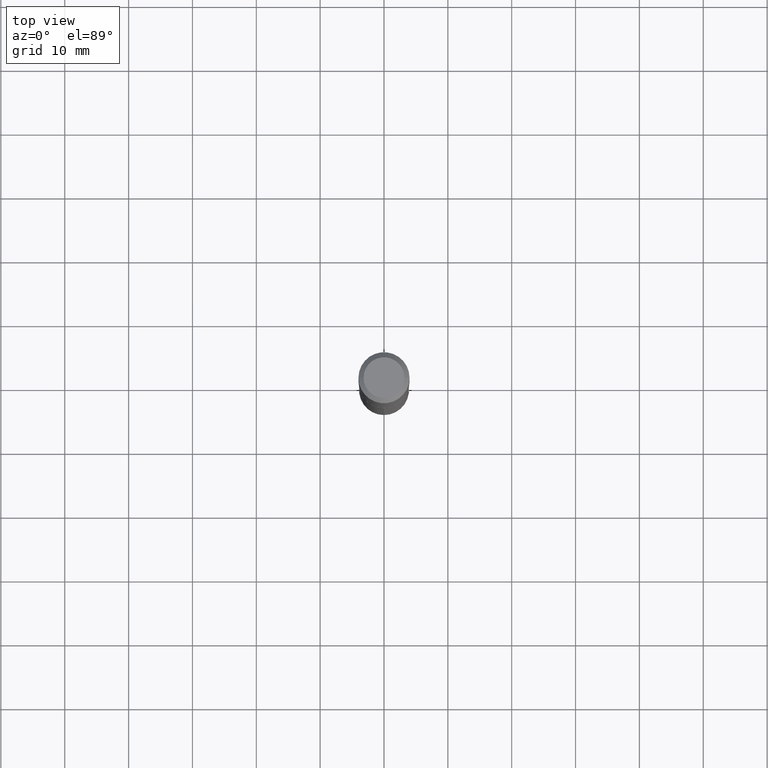
[diagram: clean part render]
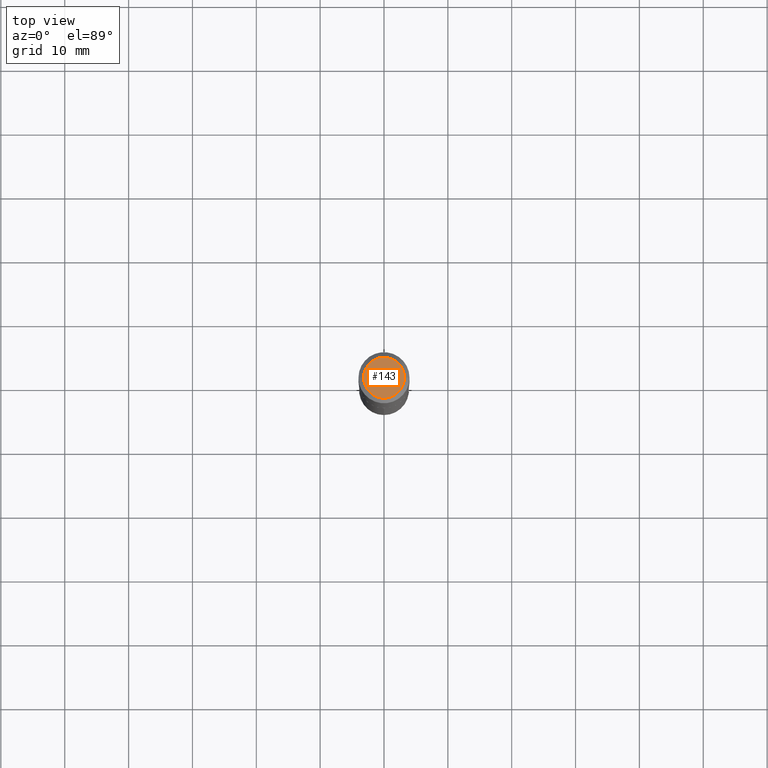
[diagram: same view with one face highlighted and labeled with its STEP entity id]
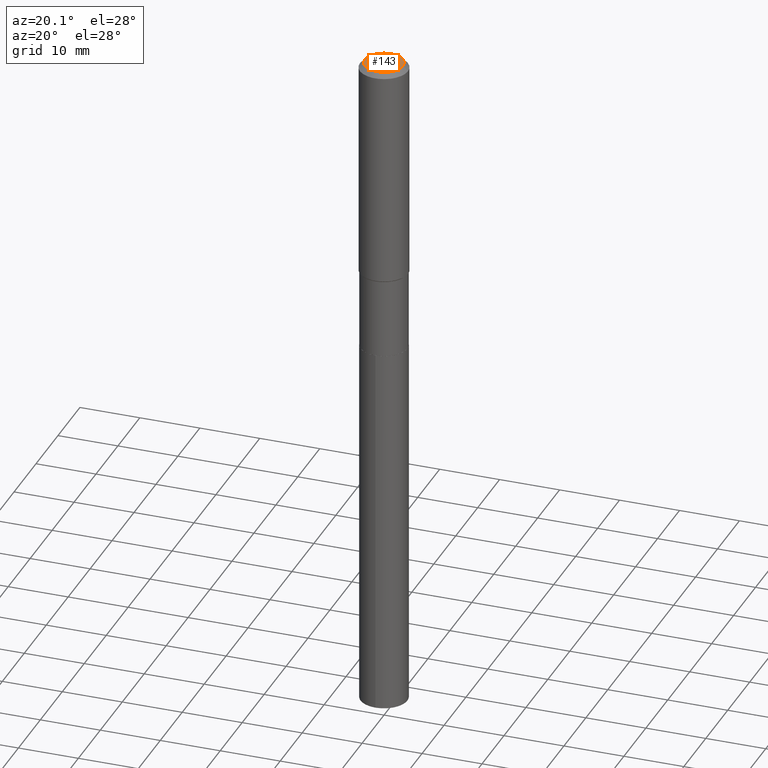
[diagram: same view with one face highlighted and labeled with its STEP entity id]
A machine part, top view. The second image highlights one B-rep face of the part: STEP entity #143.
A second angle (auxiliary view) of the same face is appended — the face is thin or edge-on in the first view.
In plain terms, the highlighted planar face has unit normal (0, -0, -1).
Its self-contained STEP definition (entity closure, byte-faithful):
#11 = PLANE ( 'NONE',  #433 ) ;
#18 = FACE_OUTER_BOUND ( 'NONE', #40, .T. ) ;
#40 = EDGE_LOOP ( 'NONE', ( #142, #178 ) ) ;
#104 = DIRECTION ( 'NONE',  ( 1.000000000000000000, -6.982962677686265922E-15, 4.876281427513067258E-29 ) ) ;
#117 = DIRECTION ( 'NONE',  ( -2.445468806185136597E-29, 3.491481338843145583E-15, 1.000000000000000000 ) ) ;
#142 = ORIENTED_EDGE ( 'NONE', *, *, #346, .T. ) ;
#143 = ADVANCED_FACE ( 'NONE', ( #18 ), #11, .F. ) ;
#156 = CARTESIAN_POINT ( 'NONE',  ( -0.1260000000000000009, 9.348441284752484904E-16, 3.860086710906114178E-18 ) ) ;
#164 = DIRECTION ( 'NONE',  ( 2.438088387897960049E-29, -3.491481338843145188E-15, -1.000000000000000000 ) ) ;
#166 = DIRECTION ( 'NONE',  ( -1.000000000000000000, 6.982962677686265922E-15, -4.876176775795935793E-29 ) ) ;
#178 = ORIENTED_EDGE ( 'NONE', *, *, #273, .T. ) ;
#188 = DIRECTION ( 'NONE',  ( 1.000000000000000000, -6.982962677686265922E-15, 4.876281427513067258E-29 ) ) ;
#203 = CIRCLE ( 'NONE', #461, 0.1260000000000000009 ) ;
#240 = CARTESIAN_POINT ( 'NONE',  ( -4.719860820353100843E-47, 6.738710358733633822E-33, 1.930043355456229866E-18 ) ) ;
#242 = CIRCLE ( 'NONE', #337, 0.1260000000000000009 ) ;
#273 = EDGE_CURVE ( 'NONE', #382, #419, #242, .T. ) ;
#297 = CARTESIAN_POINT ( 'NONE',  ( -9.439721640706201686E-47, 1.347742071746726764E-32, 3.860086710912459732E-18 ) ) ;
#303 = CARTESIAN_POINT ( 'NONE',  ( 0.1260000000000000009, -1.027466422270894443E-15, 3.860086710919128072E-18 ) ) ;
#337 = AXIS2_PLACEMENT_3D ( 'NONE', #297, #446, #104 ) ;
#346 = EDGE_CURVE ( 'NONE', #419, #382, #203, .T. ) ;
#382 = VERTEX_POINT ( 'NONE', #303 ) ;
#419 = VERTEX_POINT ( 'NONE', #156 ) ;
#433 = AXIS2_PLACEMENT_3D ( 'NONE', #240, #164, #166 ) ;
#446 = DIRECTION ( 'NONE',  ( -2.445468806185136597E-29, 3.491481338843145583E-15, 1.000000000000000000 ) ) ;
#452 = CARTESIAN_POINT ( 'NONE',  ( -9.439721640706201686E-47, 1.347742071746726764E-32, 3.860086710912459732E-18 ) ) ;
#461 = AXIS2_PLACEMENT_3D ( 'NONE', #452, #117, #188 ) ;